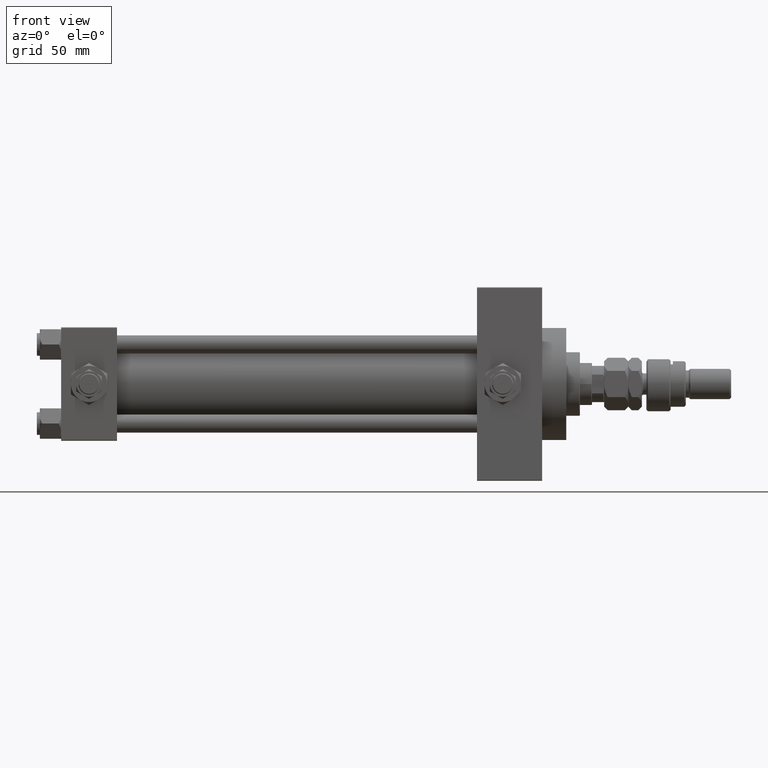
[diagram: clean part render]
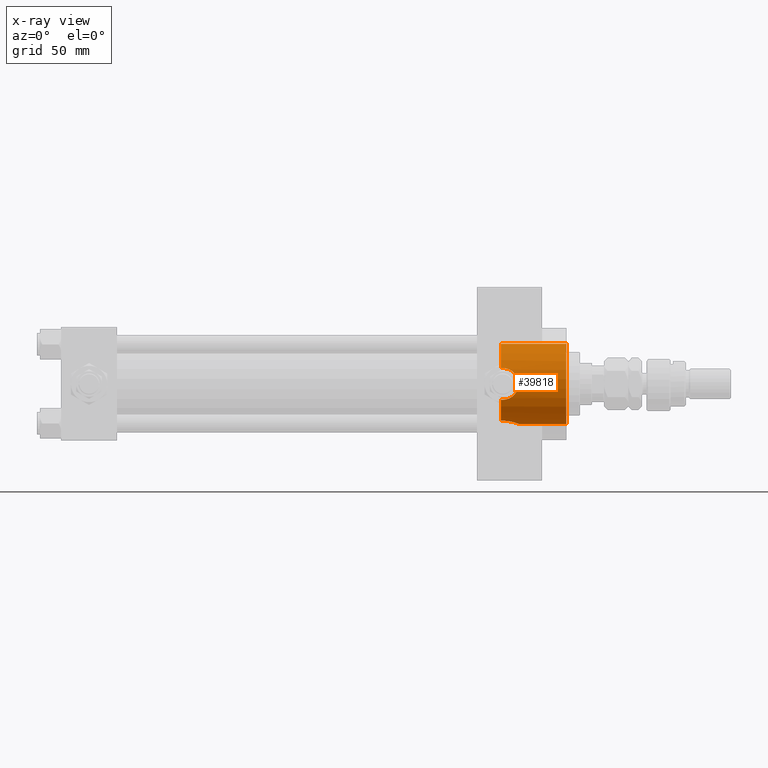
[diagram: x-ray — body ghosted, one internal face saturated and labeled with its STEP entity id]
A machine part, front view, then the same camera in x-ray: the body is ghosted and one INTERNAL B-rep face — a face not visible from any outside direction — is saturated and labeled: STEP entity #39818.
In plain terms, the highlighted cylindrical surface (partial cylindrical patch) has radius 26.5 mm, axis along (1, 0, 0).
Its self-contained STEP definition (entity closure, byte-faithful):
#61 = EDGE_CURVE ( 'NONE', #44424, #17425, #47581, .T. ) ;
#90 = EDGE_CURVE ( 'NONE', #18853, #9910, #33617, .T. ) ;
#729 = DIRECTION ( 'NONE',  ( 1.000000000000000000, 0.000000000000000000, 0.000000000000000000 ) ) ;
#791 = B_SPLINE_CURVE_WITH_KNOTS ( 'NONE', 3,
 ( #34067, #30132, #2681, #25658 ),
 .UNSPECIFIED., .F., .F.,
 ( 4, 4 ),
 ( 0.000000000000000000, 0.001255586767787742180 ),
 .UNSPECIFIED. ) ;
#873 = CARTESIAN_POINT ( 'NONE',  ( 301.9389570606566053, -26.28956209411558476, -3.395175965175869948 ) ) ;
#889 = CARTESIAN_POINT ( 'NONE',  ( 290.7399999999999523, 3.245314017740486554E-15, 26.50000000000000355 ) ) ;
#1388 = CARTESIAN_POINT ( 'NONE',  ( 299.8811664359166116, -25.58300917221411197, -6.916171625962133973 ) ) ;
#1655 = CARTESIAN_POINT ( 'NONE',  ( 302.3935590552673034, -26.46591511510091976, -1.387412420731360507 ) ) ;
#1802 = FACE_OUTER_BOUND ( 'NONE', #6090, .T. ) ;
#1908 = CARTESIAN_POINT ( 'NONE',  ( 293.3839948142214098, -24.36973996242157625, 10.41091756284552261 ) ) ;
#2081 = ORIENTED_EDGE ( 'NONE', *, *, #48183, .T. ) ;
#2421 = CIRCLE ( 'NONE', #29357, 26.50000000000000355 ) ;
#2681 = CARTESIAN_POINT ( 'NONE',  ( 291.5811236364005481, -24.33967132070604933, -10.47999999999998444 ) ) ;
#3231 = CARTESIAN_POINT ( 'NONE',  ( 302.4800000000001319, 1.044555178251169365E-14, -26.50000000000006750 ) ) ;
#4655 = CARTESIAN_POINT ( 'NONE',  ( 302.0665133812162821, -2.938253791439184415, -26.33899517628733733 ) ) ;
#4846 = LINE ( 'NONE', #889, #11689 ) ;
#4941 = AXIS2_PLACEMENT_3D ( 'NONE', #19711, #31036, #47135 ) ;
#5098 = DIRECTION ( 'NONE',  ( 1.000000000000000000, 0.000000000000000000, 0.000000000000000000 ) ) ;
#5350 = CARTESIAN_POINT ( 'NONE',  ( 300.5155153844950746, -25.78569419426081311, -6.118106053452851079 ) ) ;
#5613 = CARTESIAN_POINT ( 'NONE',  ( 301.0679913760332056, -25.97354752128885025, 5.264851845784576767 ) ) ;
#5874 = CARTESIAN_POINT ( 'NONE',  ( 302.3421836049516855, -26.44572692659852109, -1.728475508984246956 ) ) ;
#6090 = EDGE_LOOP ( 'NONE', ( #7660, #2081, #27487, #20699, #21461, #35250, #17328, #42807, #25892 ) ) ;
#6126 = CARTESIAN_POINT ( 'NONE',  ( 299.6501220615578518, -25.51256335955729071, -7.170912732211418117 ) ) ;
#7660 = ORIENTED_EDGE ( 'NONE', *, *, #34094, .F. ) ;
#8101 = CARTESIAN_POINT ( 'NONE',  ( 297.4947120380321621, -8.931495953537147869, -24.95025484238639990 ) ) ;
#8370 = CARTESIAN_POINT ( 'NONE',  ( 301.6993435614955956, -3.985990130492283789, -26.20070574291654353 ) ) ;
#8630 = CARTESIAN_POINT ( 'NONE',  ( 302.1654842721632690, -2.575241489874374512, -26.37710048711162258 ) ) ;
#8910 = CARTESIAN_POINT ( 'NONE',  ( 290.7399999999999523, 0.000000000000000000, 0.000000000000000000 ) ) ;
#9065 = CARTESIAN_POINT ( 'NONE',  ( 302.4114040688937735, -26.47265107862980571, 1.382412405478202322 ) ) ;
#9329 = CARTESIAN_POINT ( 'NONE',  ( 333.9999999999999432, 0.000000000000000000, 0.000000000000000000 ) ) ;
#9582 = CARTESIAN_POINT ( 'NONE',  ( 300.3132647636415413, -25.71940794313461964, -6.390292897823910856 ) ) ;
#9839 = CARTESIAN_POINT ( 'NONE',  ( 295.7173844672075234, -24.61993612039164248, 9.804529592362715817 ) ) ;
#9910 = VERTEX_POINT ( 'NONE', #22789 ) ;
#9990 = DIRECTION ( 'NONE',  ( 0.000000000000000000, 0.000000000000000000, -1.000000000000000000 ) ) ;
#10102 = CARTESIAN_POINT ( 'NONE',  ( 299.8850942087585167, -25.58093385762820660, 6.936447548980002153 ) ) ;
#10889 = CARTESIAN_POINT ( 'NONE',  ( 292.6982936874236998, -24.33967132070604222, 10.47999999999998444 ) ) ;
#10947 = EDGE_CURVE ( 'NONE', #46641, #22990, #28542, .T. ) ;
#11558 = CARTESIAN_POINT ( 'NONE',  ( 292.2451057705675908, -10.50334255171937947, -24.32972513250579283 ) ) ;
#11689 = VECTOR ( 'NONE', #21983, 1000.000000000000000 ) ;
#12312 = CARTESIAN_POINT ( 'NONE',  ( 290.7399999999999523, 3.245314017740486554E-15, 26.50000000000000355 ) ) ;
#12920 = CYLINDRICAL_SURFACE ( 'NONE', #13980, 26.50000000000000355 ) ;
#12922 = CARTESIAN_POINT ( 'NONE',  ( 290.7399999999999523, -10.40398000767011055, -24.37226292324947252 ) ) ;
#13030 = CARTESIAN_POINT ( 'NONE',  ( 301.0816778311290136, -25.97633853132261805, -5.273786452924777102 ) ) ;
#13280 = EDGE_CURVE ( 'NONE', #9910, #15176, #19016, .T. ) ;
#13559 = CARTESIAN_POINT ( 'NONE',  ( 298.1110651716821849, -25.09360970262139645, 8.520611273842973787 ) ) ;
#13806 = CARTESIAN_POINT ( 'NONE',  ( 297.2635990777562256, -24.90054338428141278, -9.068796382691612479 ) ) ;
#13833 = CARTESIAN_POINT ( 'NONE',  ( 290.7399999999999523, -24.37226292324946542, 10.40398000767012476 ) ) ;
#13980 = AXIS2_PLACEMENT_3D ( 'NONE', #25029, #22112, #9990 ) ;
#14331 = CARTESIAN_POINT ( 'NONE',  ( 292.0000000000000000, -24.33967132070604578, 10.47999999999998799 ) ) ;
#15176 = VERTEX_POINT ( 'NONE', #43860 ) ;
#15778 = CARTESIAN_POINT ( 'NONE',  ( 302.4799999999999045, -0.7466733969459879994, -26.50000000000000711 ) ) ;
#16041 = CARTESIAN_POINT ( 'NONE',  ( 298.6874981071935053, -8.077221093107569416, -25.24030799844107165 ) ) ;
#16557 = CARTESIAN_POINT ( 'NONE',  ( 295.5115735695663375, -9.881194972351261541, -24.58915736193083035 ) ) ;
#16827 = CARTESIAN_POINT ( 'NONE',  ( 300.8553297434205547, -5.616857363200522535, -25.89992295911057951 ) ) ;
#16992 = CARTESIAN_POINT ( 'NONE',  ( 302.1391112229688360, -26.36675217432885177, -2.738755341944234534 ) ) ;
#17242 = CARTESIAN_POINT ( 'NONE',  ( 296.3489237122696522, -24.72318467201153425, -9.541179571695412420 ) ) ;
#17328 = ORIENTED_EDGE ( 'NONE', *, *, #46302, .T. ) ;
#17425 = VERTEX_POINT ( 'NONE', #29728 ) ;
#17511 = CARTESIAN_POINT ( 'NONE',  ( 297.5577538920437064, -24.96463143003450114, -8.891425016462831010 ) ) ;
#17770 = CARTESIAN_POINT ( 'NONE',  ( 298.4049404352971351, -25.16229795609818609, -8.322848467437518494 ) ) ;
#18610 = VERTEX_POINT ( 'NONE', #12312 ) ;
#18853 = VERTEX_POINT ( 'NONE', #27481 ) ;
#19016 = B_SPLINE_CURVE_WITH_KNOTS ( 'NONE', 3,
 ( #20700, #29121, #45470, #13833 ),
 .UNSPECIFIED., .F., .F.,
 ( 4, 4 ),
 ( 0.03437190755806017461, 0.03561776921873229668 ),
 .UNSPECIFIED. ) ;
#19711 = CARTESIAN_POINT ( 'NONE',  ( 290.7399999999999523, 0.000000000000000000, 0.000000000000000000 ) ) ;
#20699 = ORIENTED_EDGE ( 'NONE', *, *, #46241, .F. ) ;
#20700 = CARTESIAN_POINT ( 'NONE',  ( 292.0000000000000000, -24.33967132070604578, 10.47999999999998799 ) ) ;
#20765 = CARTESIAN_POINT ( 'NONE',  ( 301.2276638786150897, -4.981583166679981467, -26.02957788900645042 ) ) ;
#21200 = DIRECTION ( 'NONE',  ( 0.000000000000000000, 0.000000000000000000, -1.000000000000000000 ) ) ;
#21455 = CARTESIAN_POINT ( 'NONE',  ( 302.1219222710722647, -26.36027543327035616, 2.738055544399103258 ) ) ;
#21461 = ORIENTED_EDGE ( 'NONE', *, *, #40818, .T. ) ;
#21968 = CARTESIAN_POINT ( 'NONE',  ( 294.7286532048194090, -24.48994387988091148, 10.12445329003759831 ) ) ;
#21983 = DIRECTION ( 'NONE',  ( 1.000000000000000000, -0.000000000000000000, -0.000000000000000000 ) ) ;
#22112 = DIRECTION ( 'NONE',  ( 1.000000000000000000, -0.000000000000000000, -0.000000000000000000 ) ) ;
#22219 = CARTESIAN_POINT ( 'NONE',  ( 298.9276451403626425, -25.30216499957183629, -7.893159106980487394 ) ) ;
#22789 = CARTESIAN_POINT ( 'NONE',  ( 292.0000000000000000, -24.33967132070604578, 10.47999999999998799 ) ) ;
#22990 = VERTEX_POINT ( 'NONE', #12922 ) ;
#23454 = VERTEX_POINT ( 'NONE', #3231 ) ;
#24199 = CARTESIAN_POINT ( 'NONE',  ( 293.7216423275557986, -10.36418010715235560, -24.38933169417625635 ) ) ;
#24463 = CARTESIAN_POINT ( 'NONE',  ( 302.4800000000001319, 1.044555178251169365E-14, -26.50000000000006750 ) ) ;
#24799 = CARTESIAN_POINT ( 'NONE',  ( 333.9999999999999432, 3.245314017740486554E-15, 26.50000000000000355 ) ) ;
#24874 = DIRECTION ( 'NONE',  ( 1.000000000000000000, -0.000000000000000000, -0.000000000000000000 ) ) ;
#25029 = CARTESIAN_POINT ( 'NONE',  ( 290.7399999999999523, 0.000000000000000000, 0.000000000000000000 ) ) ;
#25145 = CARTESIAN_POINT ( 'NONE',  ( 300.3165002292776649, -25.71874665637611557, 6.413821170274212058 ) ) ;
#25400 = CARTESIAN_POINT ( 'NONE',  ( 293.3786097457405617, -24.36915941385104034, -10.41231194222669032 ) ) ;
#25658 = CARTESIAN_POINT ( 'NONE',  ( 292.0000000000000000, -24.33967132070604933, -10.47999999999998444 ) ) ;
#25892 = ORIENTED_EDGE ( 'NONE', *, *, #13280, .T. ) ;
#25917 = CARTESIAN_POINT ( 'NONE',  ( 295.3904700717598075, -24.57248644795726733, 9.922439993611757103 ) ) ;
#27481 = CARTESIAN_POINT ( 'NONE',  ( 292.0000000000000000, -24.33967132070604933, -10.47999999999998444 ) ) ;
#27487 = ORIENTED_EDGE ( 'NONE', *, *, #61, .T. ) ;
#27884 = CARTESIAN_POINT ( 'NONE',  ( 298.3983008714430412, -8.308216825530751137, -25.16494175890555596 ) ) ;
#28542 = CIRCLE ( 'NONE', #4941, 26.50000000000000355 ) ;
#28688 = DIRECTION ( 'NONE',  ( 0.000000000000000000, 0.000000000000000000, -1.000000000000000000 ) ) ;
#29072 = AXIS2_PLACEMENT_3D ( 'NONE', #9329, #5098, #21200 ) ;
#29094 = CARTESIAN_POINT ( 'NONE',  ( 302.4626037639856690, -26.49310609510640191, -0.6963515910539235243 ) ) ;
#29121 = CARTESIAN_POINT ( 'NONE',  ( 291.5796744023296583, -24.33967132070604933, 10.47999999999998799 ) ) ;
#29357 = AXIS2_PLACEMENT_3D ( 'NONE', #8910, #729, #28688 ) ;
#29619 = CARTESIAN_POINT ( 'NONE',  ( 301.5385175848662698, -26.14168889184969302, 4.354785931857525938 ) ) ;
#29728 = CARTESIAN_POINT ( 'NONE',  ( 333.9999999999999432, 0.000000000000000000, -26.50000000000000355 ) ) ;
#29864 = CARTESIAN_POINT ( 'NONE',  ( 299.1663633815064713, -25.37171319999176333, 7.654298772871983125 ) ) ;
#30132 = CARTESIAN_POINT ( 'NONE',  ( 291.1611364518797700, -24.35049096341793273, -10.45498279016080190 ) ) ;
#31036 = DIRECTION ( 'NONE',  ( 1.000000000000000000, 0.000000000000000000, 0.000000000000000000 ) ) ;
#31834 = CARTESIAN_POINT ( 'NONE',  ( 299.5076201536012377, -7.348534936426554864, -25.46581292754185100 ) ) ;
#32612 = CARTESIAN_POINT ( 'NONE',  ( 294.4459359432477186, -10.21777125531389352, -24.45211332338677579 ) ) ;
#32878 = CARTESIAN_POINT ( 'NONE',  ( 296.8603660912148712, -9.291949300782540888, -24.81826977973610937 ) ) ;
#33296 = CARTESIAN_POINT ( 'NONE',  ( 301.8022638174867325, -26.23907308479209988, 3.723318718764354607 ) ) ;
#33563 = CARTESIAN_POINT ( 'NONE',  ( 301.3916535229813576, -26.08830885934474253, 4.663043711798780855 ) ) ;
#33617 = B_SPLINE_CURVE_WITH_KNOTS ( 'NONE', 3,
 ( #37787, #50149, #25400, #49124, #41474, #17242, #34068, #13806, #17511, #17770, #22219, #6126, #1388, #9582, #5350, #13030, #46214, #873, #16992, #5874, #1655, #29094, #49894, #41730, #9065, #33818, #21455, #41223, #33296, #29619, #33563, #5613, #45180, #25145, #10102, #29864, #49387, #49649, #13559, #45694, #45949, #9839, #25917, #21968, #38038, #1908, #10889, #14331 ),
 .UNSPECIFIED., .F., .F.,
 ( 4, 2, 2, 2, 2, 2, 2, 2, 2, 2, 2, 2, 2, 2, 2, 2, 2, 2, 2, 2, 2, 2, 2, 4 ),
 ( 0.001255586767787742180, 0.003325356817179595491, 0.005395126866571448368, 0.006430011891267453303, 0.007464896915963456503, 0.009534666965355461168, 0.01056955199005146610, 0.01160443701474746930, 0.01367420706413947397, 0.01574397711353147516, 0.01677886213822749398, 0.01781374716292351626, 0.01988351721231555042, 0.02091840223701154841, 0.02195328726170754641, 0.02298817228640355134, 0.02402305731109954934, 0.02609282736049155227, 0.02712771238518760925, 0.02816259740988366969, 0.03023236745927578017, 0.03126725248397184409, 0.03230213750866790107, 0.03437190755806017461 ),
 .UNSPECIFIED. ) ;
#33818 = CARTESIAN_POINT ( 'NONE',  ( 302.2075249541715039, -26.39335609204158573, 2.399236127628252113 ) ) ;
#34067 = CARTESIAN_POINT ( 'NONE',  ( 290.7399999999999523, -24.37226292324946542, -10.40398000767012121 ) ) ;
#34068 = CARTESIAN_POINT ( 'NONE',  ( 296.6580558779859871, -24.77960996754317335, -9.394203453174505114 ) ) ;
#34094 = EDGE_CURVE ( 'NONE', #18610, #15176, #2421, .T. ) ;
#35250 = ORIENTED_EDGE ( 'NONE', *, *, #10947, .F. ) ;
#36563 = CARTESIAN_POINT ( 'NONE',  ( 295.8600678267362127, -9.750145953289905520, -24.64162310621549068 ) ) ;
#37787 = CARTESIAN_POINT ( 'NONE',  ( 292.0000000000000000, -24.33967132070604933, -10.47999999999998444 ) ) ;
#38038 = CARTESIAN_POINT ( 'NONE',  ( 294.3947302122626297, -24.45488967133338676, 10.20851256290626274 ) ) ;
#39734 = CARTESIAN_POINT ( 'NONE',  ( 301.8335546017133311, -3.642695553053310498, -26.25084325021122211 ) ) ;
#39818 = ADVANCED_FACE ( 'NONE', ( #1802 ), #12920, .F. ) ;
#40524 = CARTESIAN_POINT ( 'NONE',  ( 296.5335921408432682, -9.455792512420329032, -24.75606841526507296 ) ) ;
#40818 = EDGE_CURVE ( 'NONE', #23454, #22990, #49331, .T. ) ;
#41223 = CARTESIAN_POINT ( 'NONE',  ( 301.9191483855534557, -26.28308039691836484, 3.400110870430098409 ) ) ;
#41474 = CARTESIAN_POINT ( 'NONE',  ( 295.4024368383431352, -24.56844862672226171, -9.935854460437955282 ) ) ;
#41730 = CARTESIAN_POINT ( 'NONE',  ( 302.4798633477533940, -26.49994595790488106, 0.6963870350870599024 ) ) ;
#42807 = ORIENTED_EDGE ( 'NONE', *, *, #90, .T. ) ;
#43860 = CARTESIAN_POINT ( 'NONE',  ( 290.7399999999999523, -24.37226292324946542, 10.40398000767012476 ) ) ;
#43974 = CARTESIAN_POINT ( 'NONE',  ( 297.8022832347252802, -8.734885810677003093, -25.02004257437573997 ) ) ;
#44226 = CARTESIAN_POINT ( 'NONE',  ( 300.6508763872860754, -5.926808359427536921, -25.83050513016099003 ) ) ;
#44424 = VERTEX_POINT ( 'NONE', #24799 ) ;
#44499 = CARTESIAN_POINT ( 'NONE',  ( 302.4011065554136621, -1.483758503940586948, -26.46850309434598003 ) ) ;
#44916 = CARTESIAN_POINT ( 'NONE',  ( 290.7399999999999523, 0.000000000000000000, -26.50000000000000355 ) ) ;
#45180 = CARTESIAN_POINT ( 'NONE',  ( 300.8904987776702455, -25.91192981801192019, 5.559420023815751399 ) ) ;
#45470 = CARTESIAN_POINT ( 'NONE',  ( 291.1580741051582208, -24.35064928096445058, 10.45461191700780645 ) ) ;
#45694 = CARTESIAN_POINT ( 'NONE',  ( 297.2636119660473923, -24.89625137302611435, 9.087734872939151387 ) ) ;
#45949 = CARTESIAN_POINT ( 'NONE',  ( 296.6659000583122179, -24.77500862834707007, 9.408993987884889165 ) ) ;
#46214 = CARTESIAN_POINT ( 'NONE',  ( 301.4057128516257080, -26.09263577897064224, -4.673612418766433407 ) ) ;
#46241 = EDGE_CURVE ( 'NONE', #23454, #17425, #47564, .T. ) ;
#46302 = EDGE_CURVE ( 'NONE', #46641, #18853, #791, .T. ) ;
#46641 = VERTEX_POINT ( 'NONE', #47968 ) ;
#47135 = DIRECTION ( 'NONE',  ( 0.000000000000000000, 0.000000000000000000, -1.000000000000000000 ) ) ;
#47564 = LINE ( 'NONE', #44916, #50261 ) ;
#47581 = CIRCLE ( 'NONE', #29072, 26.50000000000000355 ) ;
#47968 = CARTESIAN_POINT ( 'NONE',  ( 290.7399999999999523, -24.37226292324946542, -10.40398000767012121 ) ) ;
#48182 = CARTESIAN_POINT ( 'NONE',  ( 291.4868983507927851, -10.49443499905851418, -24.33364968799255124 ) ) ;
#48183 = EDGE_CURVE ( 'NONE', #18610, #44424, #4846, .T. ) ;
#48707 = CARTESIAN_POINT ( 'NONE',  ( 290.7399999999999523, -10.40398000767011055, -24.37226292324947252 ) ) ;
#49124 = CARTESIAN_POINT ( 'NONE',  ( 294.7461877943153468, -24.48462605612510856, -10.13781324604278566 ) ) ;
#49331 = B_SPLINE_CURVE_WITH_KNOTS ( 'NONE', 3,
 ( #24463, #15778, #44499, #8630, #4655, #39734, #8370, #52128, #20765, #16827, #44226, #51856, #31834, #16041, #27884, #43974, #8101, #32878, #40524, #36563, #16557, #32612, #24199, #11558, #48182, #48707 ),
 .UNSPECIFIED., .F., .F.,
 ( 4, 2, 2, 2, 2, 2, 2, 2, 2, 2, 2, 2, 4 ),
 ( 0.01781170071191080437, 0.02003745927526336124, 0.02115033855693962059, 0.02226321783861587994, 0.02337609712029213929, 0.02448897640196839864, 0.02671473496532101796, 0.02782761424699738834, 0.02894049352867375871, 0.03005337281035012909, 0.03116625209202649946, 0.03339201065537939633, 0.03561776921873228974 ),
 .UNSPECIFIED. ) ;
#49387 = CARTESIAN_POINT ( 'NONE',  ( 298.9147507852791250, -25.30155050139243045, 7.882476147205608186 ) ) ;
#49649 = CARTESIAN_POINT ( 'NONE',  ( 298.3864792908361210, -25.16230905708521703, 8.316254619809560822 ) ) ;
#49894 = CARTESIAN_POINT ( 'NONE',  ( 302.4800680225664564, -26.50002690099940850, -0.3451042088078200565 ) ) ;
#50149 = CARTESIAN_POINT ( 'NONE',  ( 292.6904960883776425, -24.33967132070605288, -10.47999999999998444 ) ) ;
#50261 = VECTOR ( 'NONE', #24874, 1000.000000000000000 ) ;
#51856 = CARTESIAN_POINT ( 'NONE',  ( 299.9981355541606831, -6.811571481472507905, -25.61680511670813942 ) ) ;
#52128 = CARTESIAN_POINT ( 'NONE',  ( 301.3963988635403553, -4.655434592126336035, -26.09007526830298573 ) ) ;